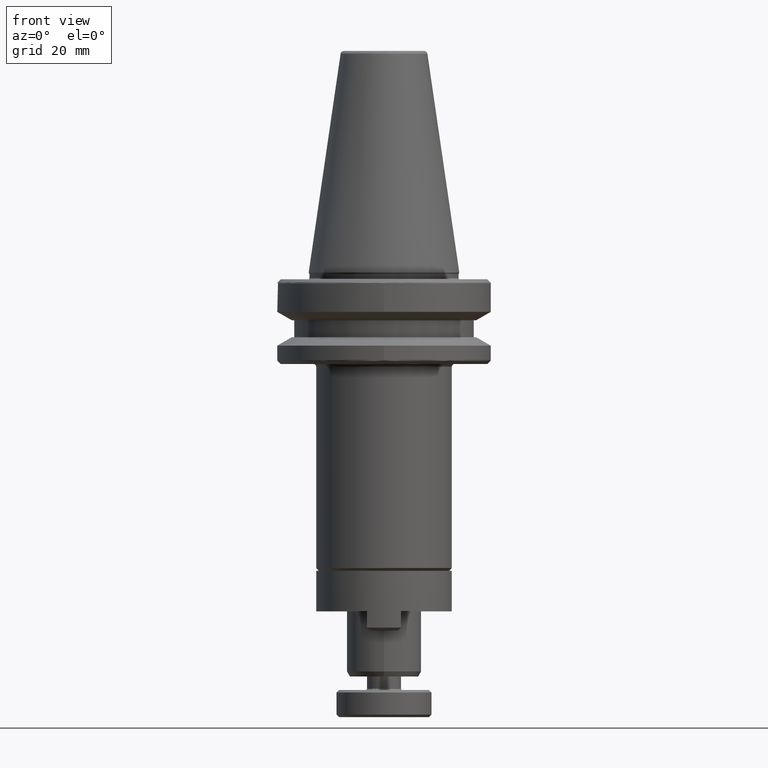
[diagram: clean part render]
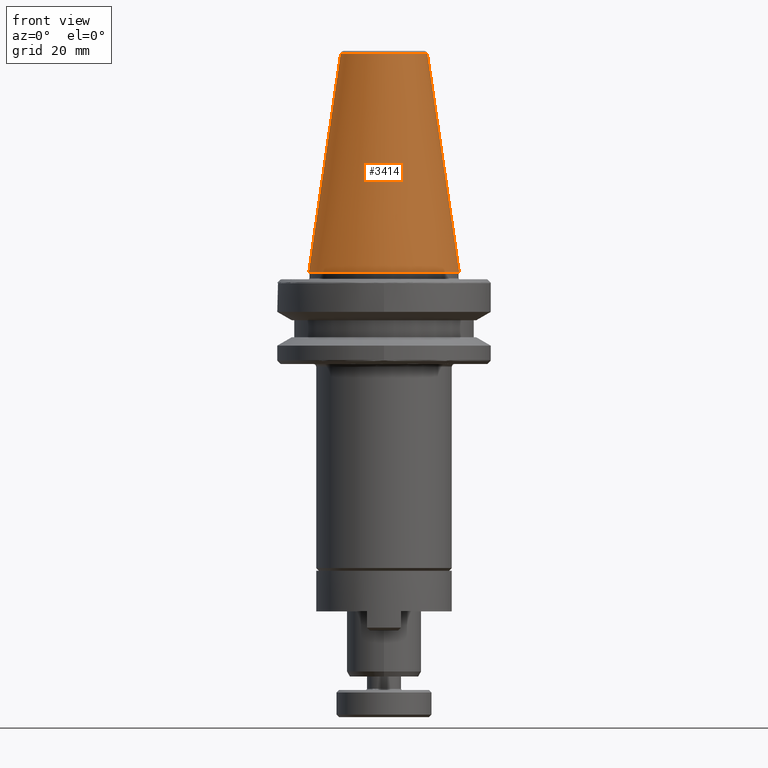
[diagram: same view with one face highlighted and labeled with its STEP entity id]
A machine part, front view. The second image highlights one B-rep face of the part: STEP entity #3414.
In plain terms, the highlighted conical surface has half-angle 8.297 deg.
Its self-contained STEP definition (entity closure, byte-faithful):
#18 = ORIENTED_EDGE ( 'NONE', *, *, #1301, .T. ) ;
#153 = EDGE_LOOP ( 'NONE', ( #1896, #2076, #239, #18 ) ) ;
#175 = EDGE_CURVE ( 'NONE', #867, #2257, #195, .T. ) ;
#195 = LINE ( 'NONE', #2099, #3360 ) ;
#218 = CARTESIAN_POINT ( 'NONE',  ( -22.22499999999999800, 0.0000000000000000000, 6.238411189407974800 ) ) ;
#239 = ORIENTED_EDGE ( 'NONE', *, *, #175, .T. ) ;
#253 = CARTESIAN_POINT ( 'NONE',  ( 12.81219950700000300, 1.569041911628485000E-015, 70.78271941640797100 ) ) ;
#279 = DIRECTION ( 'NONE',  ( -0.0000000000000000000, -0.0000000000000000000, 1.000000000000000000 ) ) ;
#332 = CARTESIAN_POINT ( 'NONE',  ( 12.81219950696690200, -3.941739068562204500E-009, 70.78271941641652600 ) ) ;
#485 = CARTESIAN_POINT ( 'NONE',  ( 22.22499999999999800, 2.721777511104992100E-015, 6.238411189407974800 ) ) ;
#718 = CIRCLE ( 'NONE', #2704, 12.81219950700000300 ) ;
#778 = AXIS2_PLACEMENT_3D ( 'NONE', #3398, #3653, #2164 ) ;
#867 = VERTEX_POINT ( 'NONE', #3644 ) ;
#936 = AXIS2_PLACEMENT_3D ( 'NONE', #1611, #2501, #1904 ) ;
#1301 = EDGE_CURVE ( 'NONE', #2257, #2326, #3552, .T. ) ;
#1493 = FACE_OUTER_BOUND ( 'NONE', #153, .T. ) ;
#1611 = CARTESIAN_POINT ( 'NONE',  ( 0.0000000000000000000, 0.0000000000000000000, 70.78271941640797100 ) ) ;
#1864 = CARTESIAN_POINT ( 'NONE',  ( 0.0000000000000000000, 0.0000000000000000000, 70.78271941640794300 ) ) ;
#1896 = ORIENTED_EDGE ( 'NONE', *, *, #2516, .F. ) ;
#1904 = DIRECTION ( 'NONE',  ( -1.000000000000000000, 0.0000000000000000000, 0.0000000000000000000 ) ) ;
#1934 = VERTEX_POINT ( 'NONE', #332 ) ;
#2042 = CONICAL_SURFACE ( 'NONE', #936, 12.81219950700000300, 0.1448138465489547400 ) ;
#2076 = ORIENTED_EDGE ( 'NONE', *, *, #2293, .F. ) ;
#2099 = CARTESIAN_POINT ( 'NONE',  ( -12.81219950700000300, 0.0000000000000000000, 70.78271941640797100 ) ) ;
#2132 = VECTOR ( 'NONE', #2941, 1000.000000000000000 ) ;
#2164 = DIRECTION ( 'NONE',  ( 1.000000000000000000, 0.0000000000000000000, 0.0000000000000000000 ) ) ;
#2257 = VERTEX_POINT ( 'NONE', #218 ) ;
#2293 = EDGE_CURVE ( 'NONE', #867, #1934, #718, .T. ) ;
#2326 = VERTEX_POINT ( 'NONE', #485 ) ;
#2501 = DIRECTION ( 'NONE',  ( 0.0000000000000000000, 0.0000000000000000000, -1.000000000000000000 ) ) ;
#2516 = EDGE_CURVE ( 'NONE', #1934, #2326, #3570, .T. ) ;
#2704 = AXIS2_PLACEMENT_3D ( 'NONE', #1864, #279, #3356 ) ;
#2941 = DIRECTION ( 'NONE',  ( 0.1443082272688266400, 1.767266086153973400E-017, -0.9895327864919528600 ) ) ;
#3353 = DIRECTION ( 'NONE',  ( -0.1443082272688266400, 0.0000000000000000000, -0.9895327864919528600 ) ) ;
#3356 = DIRECTION ( 'NONE',  ( -1.000000000000000000, 0.0000000000000000000, 2.166339635943424900E-015 ) ) ;
#3360 = VECTOR ( 'NONE', #3353, 1000.000000000000000 ) ;
#3398 = CARTESIAN_POINT ( 'NONE',  ( 0.0000000000000000000, 0.0000000000000000000, 6.238411189407974800 ) ) ;
#3414 = ADVANCED_FACE ( 'NONE', ( #1493 ), #2042, .T. ) ;
#3552 = CIRCLE ( 'NONE', #778, 22.22499999999999800 ) ;
#3570 = LINE ( 'NONE', #253, #2132 ) ;
#3644 = CARTESIAN_POINT ( 'NONE',  ( -12.81219950696881500, -1.150453881886354600E-009, 70.78271941640339500 ) ) ;
#3653 = DIRECTION ( 'NONE',  ( 0.0000000000000000000, 0.0000000000000000000, 1.000000000000000000 ) ) ;